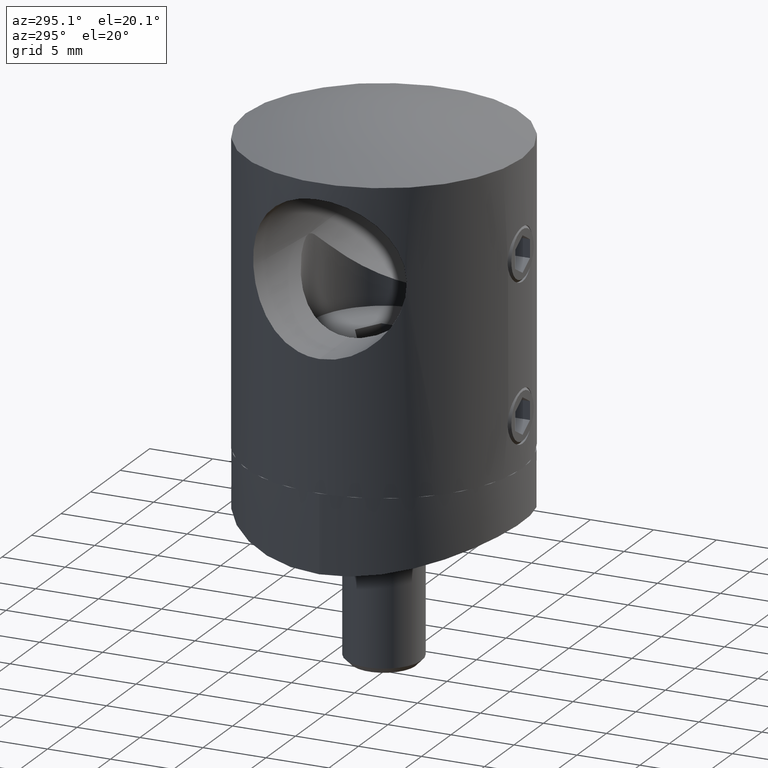
[diagram: clean part render]
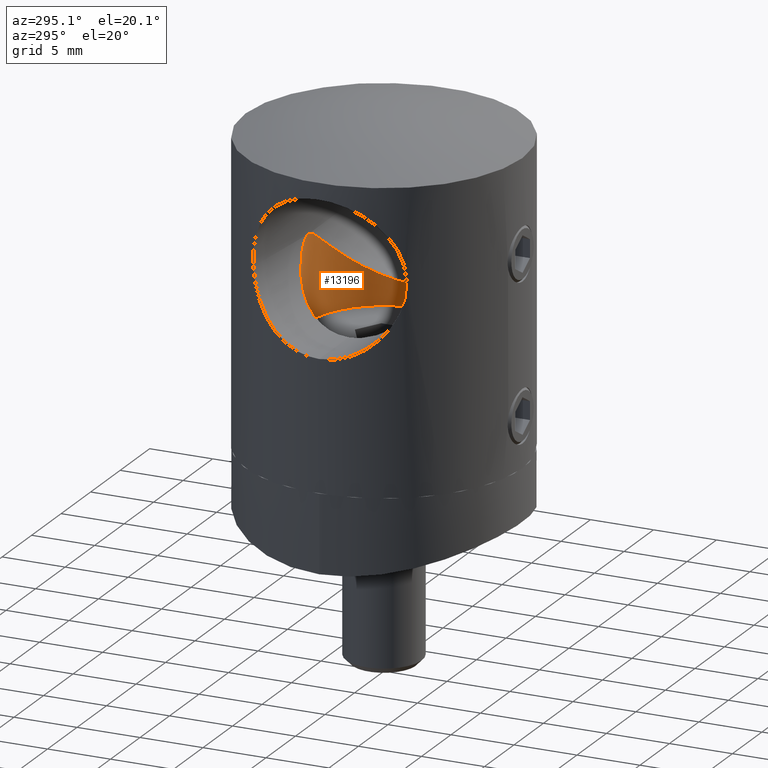
[diagram: same view with one face highlighted and labeled with its STEP entity id]
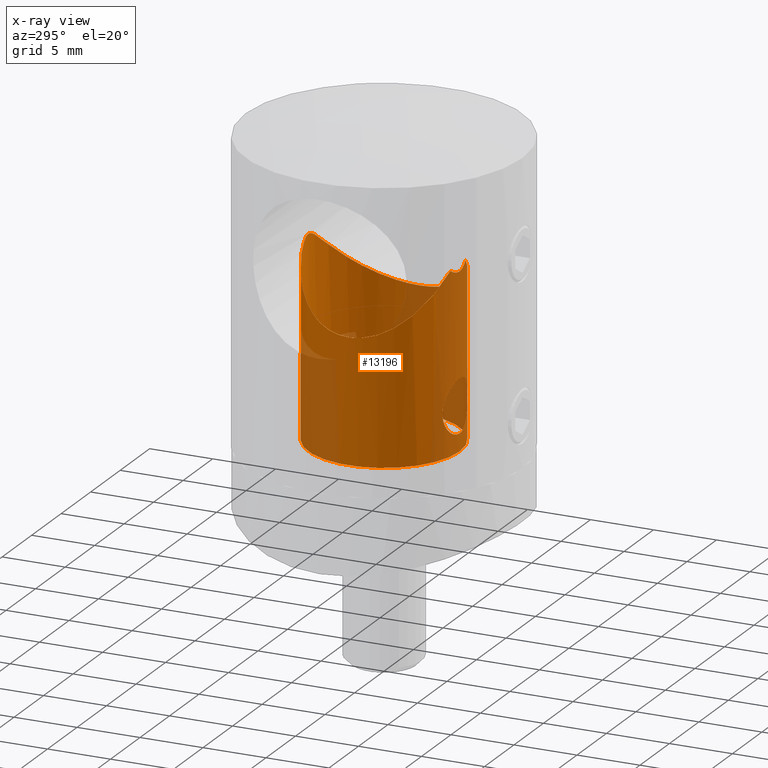
[diagram: x-ray of the same camera — body ghosted, the highlighted face saturated]
A machine part, auxiliary view. The second image highlights one B-rep face of the part: STEP entity #13196.
The next image is the same camera in x-ray: the body ghosted, the highlighted face saturated — about 33% of this face is hidden behind the body in this view.
In plain terms, the highlighted cylindrical surface (bore or boss wall) has radius 6 mm, axis along (0, 0, -1).
Its self-contained STEP definition (entity closure, byte-faithful):
#70 = CARTESIAN_POINT ( 'NONE',  ( 0.1399303184415940926, -5.999999999999993783, 1.900000000000005240 ) ) ;
#480 = EDGE_LOOP ( 'NONE', ( #7732 ) ) ;
#641 = AXIS2_PLACEMENT_3D ( 'NONE', #17676, #14328, #14405 ) ;
#669 = AXIS2_PLACEMENT_3D ( 'NONE', #4881, #14840, #13079 ) ;
#960 = CARTESIAN_POINT ( 'NONE',  ( 0.7661013249264022607, 5.954079012048654640, 15.07060193137590609 ) ) ;
#1026 = CARTESIAN_POINT ( 'NONE',  ( -5.833782839444026536, -1.417998730812822794, 10.46342172039293494 ) ) ;
#1094 = CARTESIAN_POINT ( 'NONE',  ( 0.1664089112603113485, 5.998586653625032739, 15.29203420907048283 ) ) ;
#1154 = CARTESIAN_POINT ( 'NONE',  ( -0.2262443608421996766, -5.996778746169612262, 14.30915134030809988 ) ) ;
#1157 = CARTESIAN_POINT ( 'NONE',  ( 0.6799031944775876246, -5.962726470154969149, 5.991631115680869257 ) ) ;
#1168 = CARTESIAN_POINT ( 'NONE',  ( -3.636098034188537387, -4.784718748379321873, 12.60180303829232606 ) ) ;
#1194 = CARTESIAN_POINT ( 'NONE',  ( 1.264911064067336444, -5.865151319446074041, 14.72369453857597676 ) ) ;
#1240 = CARTESIAN_POINT ( 'NONE',  ( 2.678942672394189817, 5.378707453403088756, 13.50570936899195118 ) ) ;
#1296 = CARTESIAN_POINT ( 'NONE',  ( 1.282893921177702401, -5.862382304820060064, 5.668170089699676950 ) ) ;
#1377 = CARTESIAN_POINT ( 'NONE',  ( 1.054979748196496647, -5.907653145361189573, 2.179116733785583904 ) ) ;
#1442 = CARTESIAN_POINT ( 'NONE',  ( 5.902884294256615760, 1.155421326008484684, 10.39550549845728789 ) ) ;
#1456 = CARTESIAN_POINT ( 'NONE',  ( 0.5485102145950183639, -5.976435261253107534, 6.031854882297268183 ) ) ;
#1751 = EDGE_CURVE ( 'NONE', #14231, #11536, #6499, .T. ) ;
#1843 = CARTESIAN_POINT ( 'NONE',  ( -0.8801224840784339642, -5.935953345204749709, 14.49002073084944264 ) ) ;
#2005 = CARTESIAN_POINT ( 'NONE',  ( -2.513309521868856145, -5.457960451530768253, 13.65982984228988961 ) ) ;
#2522 = VERTEX_POINT ( 'NONE', #6498 ) ;
#2634 = CARTESIAN_POINT ( 'NONE',  ( 1.451721868584812558, 5.824105846830126332, 14.58084361014226005 ) ) ;
#2697 = CIRCLE ( 'NONE', #669, 5.999999999999998224 ) ;
#2707 = CARTESIAN_POINT ( 'NONE',  ( -5.404072180346550347, 2.634859264747150043, 10.88524980136711129 ) ) ;
#2731 = CARTESIAN_POINT ( 'NONE',  ( 1.600712823535374696, -5.792730449506010793, 14.47030434767153295 ) ) ;
#2773 = CARTESIAN_POINT ( 'NONE',  ( -5.781654944826906117, -1.616613241820927360, 10.51464520929871505 ) ) ;
#2831 = CARTESIAN_POINT ( 'NONE',  ( -2.100097390676808118, -5.620461810260683144, 4.136718875267626494 ) ) ;
#2841 = CARTESIAN_POINT ( 'NONE',  ( -4.394411648217268151, -4.088980755355672514, 11.87010875707530033 ) ) ;
#2867 = CARTESIAN_POINT ( 'NONE',  ( 2.519141720066565782, -5.455323266381119751, 13.65448253211364005 ) ) ;
#2903 = CARTESIAN_POINT ( 'NONE',  ( -1.990963533487665638, -5.660313271408461411, 3.318295880892017102 ) ) ;
#2916 = CARTESIAN_POINT ( 'NONE',  ( -5.566520937633480770, 2.276123881821266348, 10.72588678268597562 ) ) ;
#2978 = CARTESIAN_POINT ( 'NONE',  ( 2.100005955277874481, -5.620495973474040063, 4.138307198453883728 ) ) ;
#3051 = CARTESIAN_POINT ( 'NONE',  ( -0.1386258689238634156, -5.999981683544563182, 6.099947667266897078 ) ) ;
#3123 = FACE_OUTER_BOUND ( 'NONE', #19188, .T. ) ;
#3602 = CARTESIAN_POINT ( 'NONE',  ( -1.175197539347627718, -5.884499435774835696, 14.65599826684871942 ) ) ;
#3813 = CARTESIAN_POINT ( 'NONE',  ( 5.995776451328667989, 0.3099123428654444456, 10.30415429417565676 ) ) ;
#3947 = CARTESIAN_POINT ( 'NONE',  ( -1.019037226394219342, 5.915345745975993275, 14.90492701504486561 ) ) ;
#4331 = CARTESIAN_POINT ( 'NONE',  ( 2.385812162248570178, 5.514868211023974176, 13.77669042793656828 ) ) ;
#4374 = CARTESIAN_POINT ( 'NONE',  ( 6.002658118569156542, -0.1160880103349958004, 10.29738546987162984 ) ) ;
#4401 = CARTESIAN_POINT ( 'NONE',  ( -3.301266255638071190, 5.020780134672565787, 12.92163397531766478 ) ) ;
#4456 = CARTESIAN_POINT ( 'NONE',  ( -2.086293483836122675, -5.625674900985013771, 3.723311567177204129 ) ) ;
#4465 = CARTESIAN_POINT ( 'NONE',  ( 1.772379662049494264, 5.734664387072843539, 14.31597426755820379 ) ) ;
#4527 = CARTESIAN_POINT ( 'NONE',  ( 1.833295944888408746, -5.714140928245528883, 2.939791683323965898 ) ) ;
#4537 = CARTESIAN_POINT ( 'NONE',  ( -5.345947242857096882, -2.730846562301733282, 10.94208900441108945 ) ) ;
#4603 = CARTESIAN_POINT ( 'NONE',  ( -0.5472454995192383986, -5.976522812651999139, 1.967890563847575214 ) ) ;
#4672 = CARTESIAN_POINT ( 'NONE',  ( -2.032077313730784152, -5.645484189008468157, 4.547412400692980583 ) ) ;
#4702 = FACE_BOUND ( 'NONE', #480, .T. ) ;
#4740 = CARTESIAN_POINT ( 'NONE',  ( 0.9335114993840624154, -5.928316084038136147, 5.886112174640409478 ) ) ;
#4881 = CARTESIAN_POINT ( 'NONE',  ( 0.000000000000000000, 1.622657008870243868E-15, 0.4999999999999970024 ) ) ;
#5648 = CARTESIAN_POINT ( 'NONE',  ( -4.805692951973780325, 3.597158703547618686, 11.47007651703236775 ) ) ;
#5860 = CARTESIAN_POINT ( 'NONE',  ( 5.853872938890667399, -1.378049250078571264, 10.44371644003604871 ) ) ;
#6020 = CARTESIAN_POINT ( 'NONE',  ( -4.694700180960722946, 3.740536793395724757, 11.57822801960869974 ) ) ;
#6064 = EDGE_LOOP ( 'NONE', ( #8145 ) ) ;
#6093 = CARTESIAN_POINT ( 'NONE',  ( -1.992287078379852749, 5.661893515845267899, 14.12526147274774857 ) ) ;
#6153 = CARTESIAN_POINT ( 'NONE',  ( -0.6810570200218681869, -5.962585327761362741, 5.991205495255794489 ) ) ;
#6162 = CARTESIAN_POINT ( 'NONE',  ( 0.05797874900376040475, 6.000668141377463627, 15.30364017751332817 ) ) ;
#6185 = CARTESIAN_POINT ( 'NONE',  ( 4.877393601296916792, -3.513269415216959679, 11.40038333103254153 ) ) ;
#6220 = CARTESIAN_POINT ( 'NONE',  ( 0.4532718972291821524, -5.983899536650502782, 14.34638074986310308 ) ) ;
#6222 = CARTESIAN_POINT ( 'NONE',  ( -2.031893931028321276, -5.645550960297865295, 3.451744546214746467 ) ) ;
#6233 = CARTESIAN_POINT ( 'NONE',  ( -0.4667924620966336646, 5.984804324095905237, 15.21602659811568259 ) ) ;
#6259 = CARTESIAN_POINT ( 'NONE',  ( 4.412337729448108981, -4.069675251550910033, 11.85271625671014029 ) ) ;
#6292 = CARTESIAN_POINT ( 'NONE',  ( 1.832704397464458346, -5.714346342055216077, 5.061775951773685556 ) ) ;
#6364 = CARTESIAN_POINT ( 'NONE',  ( 2.031781744484792540, -5.645590759985882556, 4.548445105721369508 ) ) ;
#6437 = CARTESIAN_POINT ( 'NONE',  ( 0.5468734143387898872, -5.976552651432199603, 1.967803393346845287 ) ) ;
#6498 = CARTESIAN_POINT ( 'NONE',  ( 0.000000000000000000, -5.999999999999996447, 1.900000000000005906 ) ) ;
#6499 = B_SPLINE_CURVE_WITH_KNOTS ( 'NONE', 3,
 ( #7809, #7877, #17759, #21103, #17833, #19503, #6220, #16160, #19432, #11143, #1154, #12797, #14491, #8565, #1843, #6832, #3602, #15241 ),
 .UNSPECIFIED., .F., .F.,
 ( 4, 2, 2, 2, 2, 2, 2, 2, 4 ),
 ( 0.0009087473876557543989, 0.001248528510023107132, 0.001588309632390459431, 0.001928090754757811947, 0.002267871877125164463, 0.002607652999492516763, 0.002947434121859869062, 0.003287215244227221361, 0.003626996366594573661 ),
 .UNSPECIFIED. ) ;
#6589 = EDGE_CURVE ( 'NONE', #21252, #21252, #2697, .T. ) ;
#6723 = CARTESIAN_POINT ( 'NONE',  ( 8.131516293641283255E-17, -5.999999999999995559, 1.900000000000005462 ) ) ;
#6750 = EDGE_CURVE ( 'NONE', #11536, #14231, #8920, .T. ) ;
#6832 = CARTESIAN_POINT ( 'NONE',  ( -1.078988912916292398, -5.903045030256128811, 14.59489077300873561 ) ) ;
#7321 = CARTESIAN_POINT ( 'NONE',  ( -1.357182424432292978, 5.847034122529607636, 14.65679877961454736 ) ) ;
#7688 = CARTESIAN_POINT ( 'NONE',  ( 4.769559754092274950, 3.644961848606244281, 11.50529522117300019 ) ) ;
#7732 = ORIENTED_EDGE ( 'NONE', *, *, #10356, .F. ) ;
#7757 = CARTESIAN_POINT ( 'NONE',  ( -2.806376894923880094, -5.313295236498645657, 13.38721115035932741 ) ) ;
#7809 = CARTESIAN_POINT ( 'NONE',  ( 1.264911064067336444, -5.865151319446074041, 14.72369453857597676 ) ) ;
#7812 = CARTESIAN_POINT ( 'NONE',  ( 1.991790499454957564, -5.660027428170494090, 4.679568982034623126 ) ) ;
#7822 = CARTESIAN_POINT ( 'NONE',  ( -5.998444786203076085, 0.2514064993559285144, 10.30152971741273937 ) ) ;
#7877 = CARTESIAN_POINT ( 'NONE',  ( 1.175527685021304558, -5.884428234727730356, 14.65624738905527025 ) ) ;
#7880 = CARTESIAN_POINT ( 'NONE',  ( -0.9337857770029859283, -5.928263369488841583, 5.885943294885851884 ) ) ;
#7893 = CARTESIAN_POINT ( 'NONE',  ( -2.736985555426589389, 5.349345952611728627, 13.45182069038133754 ) ) ;
#7955 = CARTESIAN_POINT ( 'NONE',  ( -0.6812341139050357430, -5.962577447961938226, 2.008811109739973233 ) ) ;
#8026 = CARTESIAN_POINT ( 'NONE',  ( -1.389511688007988965, -5.837728522015403598, 2.419587935187493599 ) ) ;
#8145 = ORIENTED_EDGE ( 'NONE', *, *, #6589, .T. ) ;
#8229 = CARTESIAN_POINT ( 'NONE',  ( 5.994764174703636428, -0.3277982703724416913, 10.30515088502910714 ) ) ;
#8565 = CARTESIAN_POINT ( 'NONE',  ( -0.7767092722544671757, -5.950499131120659868, 14.44561984550100853 ) ) ;
#8586 = FACE_OUTER_BOUND ( 'NONE', #6064, .T. ) ;
#8725 = CARTESIAN_POINT ( 'NONE',  ( -1.907797727893162376, -5.697926366024423039, 14.20193268732672642 ) ) ;
#8920 = B_SPLINE_CURVE_WITH_KNOTS ( 'NONE', 3,
 ( #17012, #16933, #8725, #2005, #7757, #20623, #1168, #19298, #14504, #2841, #17698, #11015, #19374, #4537, #15595, #9419, #14430, #2773, #1026, #11081, #14354, #19517, #21116, #7822, #16170, #14293, #12678, #2916, #2707, #11155, #15960, #5648, #6020, #17258, #8983, #17633, #4401, #7893, #9567, #6093, #21052, #16037, #7321, #3947, #12812, #6233, #18936, #6162, #1094, #12607, #12741, #960, #10940, #9357, #2634, #4465, #17847, #4331, #1240, #16107, #17773, #19446, #9496, #21195, #7688, #11218, #12882, #20988, #16246, #10137, #1442, #20358, #3813, #4374, #8229, #15369, #5860, #12762, #19471, #16274, #6185, #10964, #6259, #17721, #14383, #12911, #14456, #14598, #2867, #17872, #2731, #1194 ),
 .UNSPECIFIED., .F., .F.,
 ( 4, 2, 2, 2, 2, 2, 2, 2, 2, 2, 2, 2, 2, 2, 2, 2, 2, 2, 2, 2, 2, 2, 2, 2, 2, 2, 2, 2, 2, 2, 2, 2, 2, 2, 2, 2, 2, 2, 2, 2, 2, 2, 2, 2, 2, 4 ),
 ( 0.02322871737572002396, 0.02450615635311004931, 0.02578359533050007812, 0.02706103430789010347, 0.02769975379658511788, 0.02833847328528013229, 0.02961591226267015764, 0.03025463175136516858, 0.03089335124006018646, 0.03153207072875520434, 0.03217079021745021528, 0.03280950970614522622, 0.03344822919484024409, 0.03472566817223027291, 0.03600310714962030173, 0.03664182663831531267, 0.03728054612701032361, 0.03855798510440035243, 0.03983542408179038818, 0.04111286305918041700, 0.04175158254787543488, 0.04239030203657044582, 0.04302902152526545676, 0.04366774101396046770, 0.04398710075830797317, 0.04430646050265547864, 0.04494517999135048958, 0.04558389948004550052, 0.04622261896874051146, 0.04750005794613053334, 0.04877749692352056216, 0.05005493590091059097, 0.05069365538960560191, 0.05133237487830061285, 0.05260981385569063473, 0.05388725283308066355, 0.05452597232177568143, 0.05516469181047069237, 0.05644213078786071425, 0.05771956976525073613, 0.05899700874264075801, 0.05963572823133576895, 0.06027444772003077988, 0.06155188669742081564, 0.06282932567481083752, 0.06410676465220085940 ),
 .UNSPECIFIED. ) ;
#8983 = CARTESIAN_POINT ( 'NONE',  ( -4.101423522932064358, 4.392637027943437467, 12.15424527299565938 ) ) ;
#9139 = CYLINDRICAL_SURFACE ( 'NONE', #641, 5.999999999999998224 ) ;
#9357 = CARTESIAN_POINT ( 'NONE',  ( 1.286232487806434843, 5.863110917657483157, 14.71184017309867897 ) ) ;
#9419 = CARTESIAN_POINT ( 'NONE',  ( -5.589578985382193999, -2.189955046844229258, 10.70323267675174073 ) ) ;
#9486 = CARTESIAN_POINT ( 'NONE',  ( 2.085970634324527673, -5.625794041661613676, 4.278667550940385311 ) ) ;
#9496 = CARTESIAN_POINT ( 'NONE',  ( 4.306318209007755193, 4.193255255899520861, 11.95575110796323948 ) ) ;
#9558 = CARTESIAN_POINT ( 'NONE',  ( -0.9351004188317558752, -5.928068568057642374, 2.114661748824998355 ) ) ;
#9567 = CARTESIAN_POINT ( 'NONE',  ( -2.446229407336029560, 5.488255245201746568, 13.72139055253270357 ) ) ;
#9618 = CARTESIAN_POINT ( 'NONE',  ( 0.000000000000000000, 6.000000000000000000, 0.4999999999999976130 ) ) ;
#9696 = CARTESIAN_POINT ( 'NONE',  ( 2.032103204105484284, -5.645475466979338108, 3.452485469036107091 ) ) ;
#9775 = CARTESIAN_POINT ( 'NONE',  ( -1.282773082496065475, -5.862417377531361495, 2.331696866173553317 ) ) ;
#10137 = CARTESIAN_POINT ( 'NONE',  ( 5.807717456397283762, 1.561183395793774409, 10.48908252357609783 ) ) ;
#10356 = EDGE_CURVE ( 'NONE', #2522, #2522, #13825, .T. ) ;
#10940 = CARTESIAN_POINT ( 'NONE',  ( 0.9432332628313666589, 5.927965473695979703, 14.95598525748997787 ) ) ;
#10964 = CARTESIAN_POINT ( 'NONE',  ( 4.532680814993553575, -3.935455781845075496, 11.73582858438164855 ) ) ;
#11015 = CARTESIAN_POINT ( 'NONE',  ( -4.859172907459100799, -3.538186065332967534, 11.41815865016066489 ) ) ;
#11081 = CARTESIAN_POINT ( 'NONE',  ( -5.918360028311646204, -1.008343787436283723, 10.38028863841232052 ) ) ;
#11143 = CARTESIAN_POINT ( 'NONE',  ( -0.1133048271226436560, -6.000014974720408567, 14.29995721508188566 ) ) ;
#11145 = CARTESIAN_POINT ( 'NONE',  ( -1.055318436482937328, -5.907600806349170952, 2.179273462287428575 ) ) ;
#11155 = CARTESIAN_POINT ( 'NONE',  ( -5.120137208872969303, 3.133817932039141052, 11.16307118213196325 ) ) ;
#11210 = CARTESIAN_POINT ( 'NONE',  ( 0.9349122421464483024, -5.928103206872795461, 2.114551264284956655 ) ) ;
#11218 = CARTESIAN_POINT ( 'NONE',  ( 4.985726138990400180, 3.343199364776149540, 11.29442463996198853 ) ) ;
#11285 = CARTESIAN_POINT ( 'NONE',  ( 1.388036528353559618, -5.838097357248574149, 5.581828602384567795 ) ) ;
#11362 = CARTESIAN_POINT ( 'NONE',  ( 0.6805891605157751156, -5.962656029525704504, 2.008574322222095532 ) ) ;
#11434 = CARTESIAN_POINT ( 'NONE',  ( -0.1399303184415934265, -5.999999999999997335, 1.900000000000005906 ) ) ;
#11536 = VERTEX_POINT ( 'NONE', #15301 ) ;
#12302 = ORIENTED_EDGE ( 'NONE', *, *, #6750, .F. ) ;
#12524 = CARTESIAN_POINT ( 'NONE',  ( 8.131516293641283255E-17, -5.999999999999995559, 1.900000000000005462 ) ) ;
#12607 = CARTESIAN_POINT ( 'NONE',  ( 0.3734069377213762309, 5.989265482983431532, 15.24270616986796156 ) ) ;
#12678 = CARTESIAN_POINT ( 'NONE',  ( -5.823669825702251224, 1.500588229899904702, 10.47340437581736872 ) ) ;
#12741 = CARTESIAN_POINT ( 'NONE',  ( 0.4751520217798637646, 5.981949731203163090, 15.20485714661243470 ) ) ;
#12762 = CARTESIAN_POINT ( 'NONE',  ( 5.613096513743268012, -2.158702306415071881, 10.68018025331066667 ) ) ;
#12797 = CARTESIAN_POINT ( 'NONE',  ( -0.4498692888265825585, -5.984159044034101704, 14.34562606823417674 ) ) ;
#12798 = CARTESIAN_POINT ( 'NONE',  ( -1.885684773470322595, -5.696257661656736637, 4.934537723020820721 ) ) ;
#12812 = CARTESIAN_POINT ( 'NONE',  ( -0.8428342894105500527, 5.943518180419834707, 15.02367610893893612 ) ) ;
#12872 = CARTESIAN_POINT ( 'NONE',  ( -1.388251816607979805, -5.838037281970523296, 5.581575950864484881 ) ) ;
#12882 = CARTESIAN_POINT ( 'NONE',  ( 5.089123062623673199, 3.183904618875595727, 11.19339108233793390 ) ) ;
#12911 = CARTESIAN_POINT ( 'NONE',  ( 3.651500832452139189, -4.773158304551661679, 12.58705571074293417 ) ) ;
#12949 = CARTESIAN_POINT ( 'NONE',  ( 0.2773106023340072279, -5.995110587510872335, 1.913857049664067889 ) ) ;
#13020 = CARTESIAN_POINT ( 'NONE',  ( 1.388843066986824804, -5.837892061353306516, 2.418972633787929816 ) ) ;
#13079 = DIRECTION ( 'NONE',  ( 0.000000000000000000, 1.000000000000000000, 1.084202172485504804E-16 ) ) ;
#13102 = CARTESIAN_POINT ( 'NONE',  ( -1.677500159237450994, -5.764135783203777841, 2.707802910303006794 ) ) ;
#13196 = ADVANCED_FACE ( 'NONE', ( #8586, #4702, #3123 ), #9139, .F. ) ;
#13825 = B_SPLINE_CURVE_WITH_KNOTS ( 'NONE', 3,
 ( #12524, #11434, #19729, #4603, #7955, #9558, #11145, #9775, #8026, #13102, #16382, #2903, #6222, #4456, #19655, #2831, #16095, #4672, #14495, #12798, #21395, #14422, #17836, #12872, #19436, #17761, #7880, #6153, #14715, #14633, #3051, #14562, #16238, #1456, #1157, #4740, #21259, #1296, #11285, #19505, #6292, #7812, #6364, #9486, #2978, #17978, #17908, #9696, #21104, #4527, #21327, #13020, #21184, #1377, #11210, #11362, #6437, #12949, #70, #6723 ),
 .UNSPECIFIED., .T., .F.,
 ( 4, 2, 2, 2, 2, 2, 2, 2, 2, 2, 2, 2, 2, 2, 2, 2, 2, 2, 2, 2, 2, 2, 2, 2, 2, 2, 2, 2, 2, 4 ),
 ( 0.000000000000000000, 0.0004135997285890932545, 0.0008271994571781862921, 0.001240799185767279492, 0.001654398914356372367, 0.002481598371534559418, 0.002895198100123652727, 0.003308797828712746903, 0.003722397557301841079, 0.004135997285890934821, 0.004549597014480028997, 0.004963196743069122306, 0.005376796471658216482, 0.005790396200247310658, 0.006203995928836403967, 0.006617595657425498143, 0.007031195386014591452, 0.007444795114603684760, 0.007858394843192777202, 0.008271994571781869643, 0.009099194028960059730, 0.009512793757549152171, 0.009926393486138244612, 0.01033999321472733879, 0.01075359294331643123, 0.01158079240049461958, 0.01199439212908371202, 0.01240799185767280446, 0.01282159158626189864, 0.01323519131485099282 ),
 .UNSPECIFIED. ) ;
#14231 = VERTEX_POINT ( 'NONE', #14604 ) ;
#14293 = CARTESIAN_POINT ( 'NONE',  ( -5.914074435676524466, 1.097024858808868686, 10.38450323178436108 ) ) ;
#14328 = DIRECTION ( 'NONE',  ( -0.000000000000000000, 1.020538999289461417E-16, -1.000000000000000000 ) ) ;
#14354 = CARTESIAN_POINT ( 'NONE',  ( -5.950296952864829514, -0.7988041485098280603, 10.34888276150870468 ) ) ;
#14383 = CARTESIAN_POINT ( 'NONE',  ( 4.039811638970128627, -4.439487194943667170, 12.21325310840822631 ) ) ;
#14405 = DIRECTION ( 'NONE',  ( 0.000000000000000000, 1.000000000000000000, 0.000000000000000000 ) ) ;
#14422 = CARTESIAN_POINT ( 'NONE',  ( -1.669065092636237813, -5.763722404570110314, 5.281706429908802569 ) ) ;
#14430 = CARTESIAN_POINT ( 'NONE',  ( -5.659557308020424671, -2.002594155565413203, 10.63454632885177098 ) ) ;
#14456 = CARTESIAN_POINT ( 'NONE',  ( 3.380504423964976635, -4.968036016686640188, 12.84629196830136344 ) ) ;
#14491 = CARTESIAN_POINT ( 'NONE',  ( -0.5615677229876624432, -5.974642993147980086, 14.37329805486746004 ) ) ;
#14495 = CARTESIAN_POINT ( 'NONE',  ( -1.992054000542895276, -5.659936331073163629, 4.678887825467366923 ) ) ;
#14504 = CARTESIAN_POINT ( 'NONE',  ( -4.148651835738756510, -4.338122323941330016, 12.10810379984361340 ) ) ;
#14562 = CARTESIAN_POINT ( 'NONE',  ( 0.1370357647622499619, -6.000018211104126031, 6.100052031729355839 ) ) ;
#14598 = CARTESIAN_POINT ( 'NONE',  ( 2.814498098718423602, -5.309217689627428349, 13.37966389919892762 ) ) ;
#14604 = CARTESIAN_POINT ( 'NONE',  ( 1.264911064067336444, -5.865151319446074041, 14.72369453857597676 ) ) ;
#14633 = CARTESIAN_POINT ( 'NONE',  ( -0.2777402781516098984, -5.995120906657178672, 6.086177050655781073 ) ) ;
#14715 = CARTESIAN_POINT ( 'NONE',  ( -0.5499592264330709357, -5.976299791409970474, 6.031457407392962544 ) ) ;
#14840 = DIRECTION ( 'NONE',  ( 0.000000000000000000, 1.020538999289458459E-16, -1.000000000000000000 ) ) ;
#15241 = CARTESIAN_POINT ( 'NONE',  ( -1.264911064067342217, -5.865151319446073153, 14.72369453857597321 ) ) ;
#15301 = CARTESIAN_POINT ( 'NONE',  ( -1.264911064067342217, -5.865151319446073153, 14.72369453857597321 ) ) ;
#15369 = CARTESIAN_POINT ( 'NONE',  ( 5.937897098304138588, -0.9591532283367030232, 10.36107833749652052 ) ) ;
#15595 = CARTESIAN_POINT ( 'NONE',  ( -5.432840144034336127, -2.554123002205206383, 10.85693976831986340 ) ) ;
#15960 = CARTESIAN_POINT ( 'NONE',  ( -5.018209330528947909, 3.294208645813295533, 11.26269665249627039 ) ) ;
#16037 = CARTESIAN_POINT ( 'NONE',  ( -1.520431543465088797, 5.806516757453923816, 14.52539518162998711 ) ) ;
#16048 = ORIENTED_EDGE ( 'NONE', *, *, #1751, .F. ) ;
#16095 = CARTESIAN_POINT ( 'NONE',  ( -2.086195265504056540, -5.625710555255436063, 4.277106224398224299 ) ) ;
#16107 = CARTESIAN_POINT ( 'NONE',  ( 3.248385284976778919, 5.055217181448764308, 12.97185306989037024 ) ) ;
#16160 = CARTESIAN_POINT ( 'NONE',  ( 0.2299467678889748901, -5.996635186626018132, 14.30956178725895001 ) ) ;
#16170 = CARTESIAN_POINT ( 'NONE',  ( -5.985698333706958252, 0.4651348737191024485, 10.31406820802559032 ) ) ;
#16238 = CARTESIAN_POINT ( 'NONE',  ( 0.2760850920997884872, -5.995199655506465497, 6.086402343784765634 ) ) ;
#16246 = CARTESIAN_POINT ( 'NONE',  ( 5.542520864166993633, 2.333953324065730417, 10.74943357799607746 ) ) ;
#16274 = CARTESIAN_POINT ( 'NONE',  ( 5.086108987816015947, -3.206154352615123937, 11.19643456853000352 ) ) ;
#16382 = CARTESIAN_POINT ( 'NONE',  ( -1.833344241584948131, -5.714120875558125867, 2.940059396667277891 ) ) ;
#16933 = CARTESIAN_POINT ( 'NONE',  ( -1.597670778216228271, -5.793386513871958243, 14.47259982237476095 ) ) ;
#17012 = CARTESIAN_POINT ( 'NONE',  ( -1.264911064067342217, -5.865151319446073153, 14.72369453857597321 ) ) ;
#17258 = CARTESIAN_POINT ( 'NONE',  ( -4.348905790734336918, 4.149014291462096438, 11.91445850049536048 ) ) ;
#17633 = CARTESIAN_POINT ( 'NONE',  ( -3.575787970918268499, 4.830183781260961595, 12.65954308935619466 ) ) ;
#17676 = CARTESIAN_POINT ( 'NONE',  ( 0.000000000000000000, 0.000000000000000000, 16.39999999999999858 ) ) ;
#17698 = CARTESIAN_POINT ( 'NONE',  ( -4.514711676808831342, -3.956002903141150551, 11.75328965855303665 ) ) ;
#17721 = CARTESIAN_POINT ( 'NONE',  ( 4.166182091072029969, -4.321331701666505154, 12.09115579078956415 ) ) ;
#17759 = CARTESIAN_POINT ( 'NONE',  ( 1.081245972258002563, -5.902630107774371915, 14.59624538361841495 ) ) ;
#17761 = CARTESIAN_POINT ( 'NONE',  ( -1.056572057962527289, -5.907370391185569503, 5.819974034561118614 ) ) ;
#17773 = CARTESIAN_POINT ( 'NONE',  ( 3.526116577567899313, 4.866560667400909423, 12.70702770809062976 ) ) ;
#17833 = CARTESIAN_POINT ( 'NONE',  ( 0.7772167334863311350, -5.950427040662419564, 14.44584029581471896 ) ) ;
#17836 = CARTESIAN_POINT ( 'NONE',  ( -1.581278183707602869, -5.788737489101014155, 5.388590976637338770 ) ) ;
#17847 = CARTESIAN_POINT ( 'NONE',  ( 1.928029265789973135, 5.684115666916122578, 14.18139453505602354 ) ) ;
#17872 = CARTESIAN_POINT ( 'NONE',  ( 1.912226843375750551, -5.696491503194954120, 14.19809113239989706 ) ) ;
#17908 = CARTESIAN_POINT ( 'NONE',  ( 2.086440083120673084, -5.625620362231066984, 3.724349182297990168 ) ) ;
#17978 = CARTESIAN_POINT ( 'NONE',  ( 2.099994040831214104, -5.620500425096842001, 3.861512015611135329 ) ) ;
#18936 = CARTESIAN_POINT ( 'NONE',  ( -0.2620374366685045420, 5.998070947804656328, 15.28948799271527825 ) ) ;
#19188 = EDGE_LOOP ( 'NONE', ( #16048, #12302 ) ) ;
#19298 = CARTESIAN_POINT ( 'NONE',  ( -4.022671686120053103, -4.454974535226729593, 12.22978893750736873 ) ) ;
#19374 = CARTESIAN_POINT ( 'NONE',  ( -5.068403596444039927, -3.233880712787571721, 11.21374151570879363 ) ) ;
#19432 = CARTESIAN_POINT ( 'NONE',  ( 0.1148852733868669651, -5.999984921204157828, 14.30004308227651144 ) ) ;
#19436 = CARTESIAN_POINT ( 'NONE',  ( -1.283385613909026279, -5.862276931221731324, 5.667804354879553586 ) ) ;
#19446 = CARTESIAN_POINT ( 'NONE',  ( 4.056154818305468979, 4.434469408850405969, 12.19798403855080338 ) ) ;
#19471 = CARTESIAN_POINT ( 'NONE',  ( 5.453845788692511576, -2.530513086687507851, 10.83645594512942800 ) ) ;
#19503 = CARTESIAN_POINT ( 'NONE',  ( 0.5627164796159920268, -5.974529101161551559, 14.37363474076334136 ) ) ;
#19505 = CARTESIAN_POINT ( 'NONE',  ( 1.679082131009261847, -5.763747723864383943, 5.290733017625369961 ) ) ;
#19517 = CARTESIAN_POINT ( 'NONE',  ( -5.991591046540439613, -0.3807343246483582133, 10.30827206158403975 ) ) ;
#19655 = CARTESIAN_POINT ( 'NONE',  ( -2.099901555218820270, -5.620534980703875583, 3.860305477660861406 ) ) ;
#19729 = CARTESIAN_POINT ( 'NONE',  ( -0.2773110508732142820, -5.995114773543327225, 1.913844450117063056 ) ) ;
#20358 = CARTESIAN_POINT ( 'NONE',  ( 5.980685677498828845, 0.5255085013151896689, 10.31899852162832865 ) ) ;
#20623 = CARTESIAN_POINT ( 'NONE',  ( -3.367008295880017599, -4.976958175636695181, 12.85911165938807699 ) ) ;
#20988 = CARTESIAN_POINT ( 'NONE',  ( 5.377202813851556407, 2.689122268177664310, 10.91158296035251496 ) ) ;
#21052 = CARTESIAN_POINT ( 'NONE',  ( -1.837964678742321167, 5.713950889940555555, 14.25977914527570256 ) ) ;
#21103 = CARTESIAN_POINT ( 'NONE',  ( 0.8826147044852856727, -5.935581380551949948, 14.49117448359773341 ) ) ;
#21104 = CARTESIAN_POINT ( 'NONE',  ( 1.991246174694208726, -5.660214997163483197, 3.319050225171494617 ) ) ;
#21116 = CARTESIAN_POINT ( 'NONE',  ( -6.001283800260942769, -0.1706980661016269940, 10.29873724662283330 ) ) ;
#21184 = CARTESIAN_POINT ( 'NONE',  ( 1.281623710314716336, -5.862660541099055322, 2.330856865501474307 ) ) ;
#21195 = CARTESIAN_POINT ( 'NONE',  ( 4.656862436866060939, 3.787555119558799976, 11.61506419267941759 ) ) ;
#21252 = VERTEX_POINT ( 'NONE', #9618 ) ;
#21259 = CARTESIAN_POINT ( 'NONE',  ( 1.056301083882025926, -5.907416619898387289, 5.820119853568161972 ) ) ;
#21327 = CARTESIAN_POINT ( 'NONE',  ( 1.677594955765174367, -5.764126152619210686, 2.707790437232915792 ) ) ;
#21395 = CARTESIAN_POINT ( 'NONE',  ( -1.820638573103270597, -5.717652440165347905, 5.055379003986185893 ) ) ;